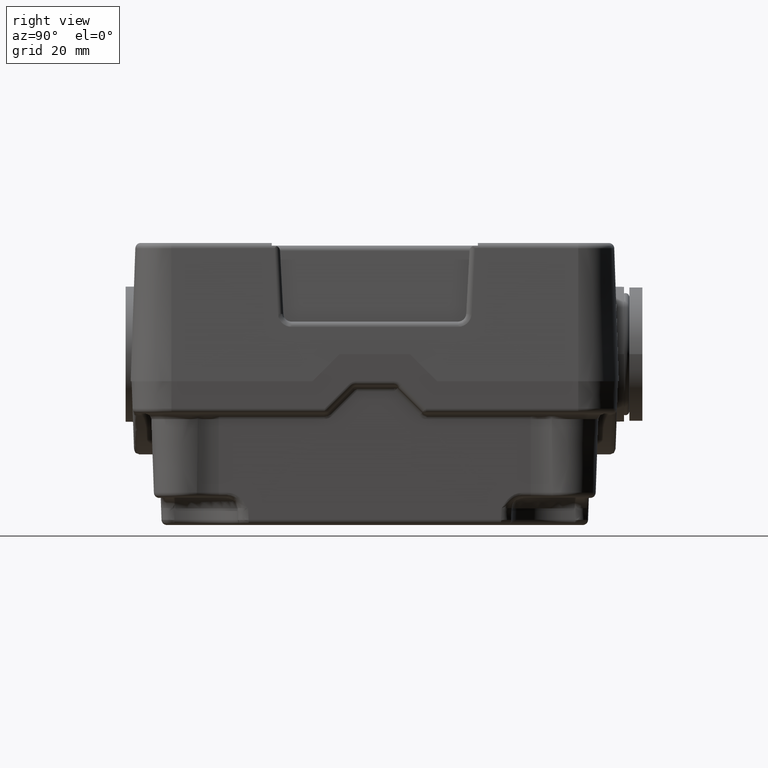
[diagram: clean part render]
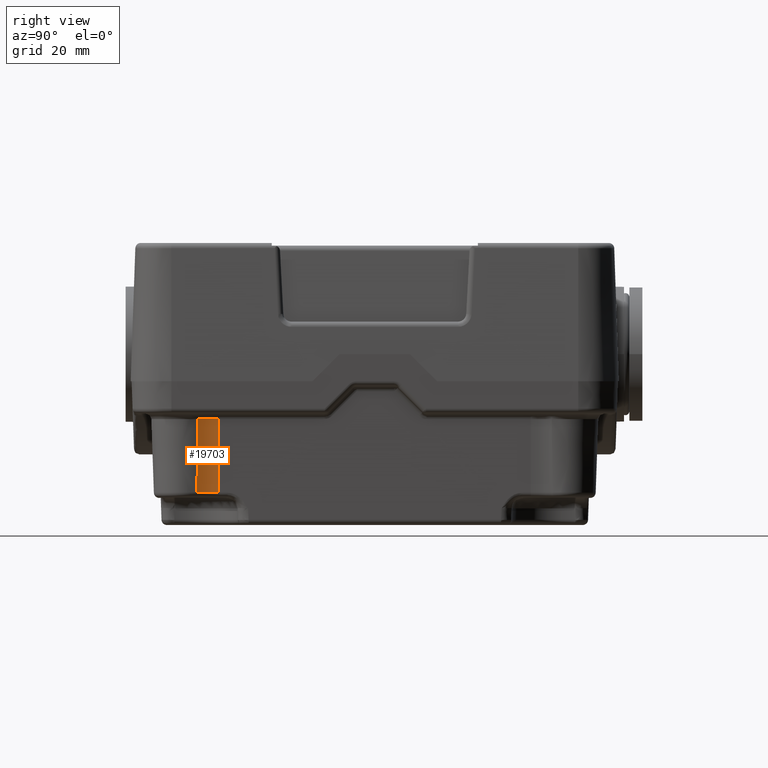
[diagram: same view with one face highlighted and labeled with its STEP entity id]
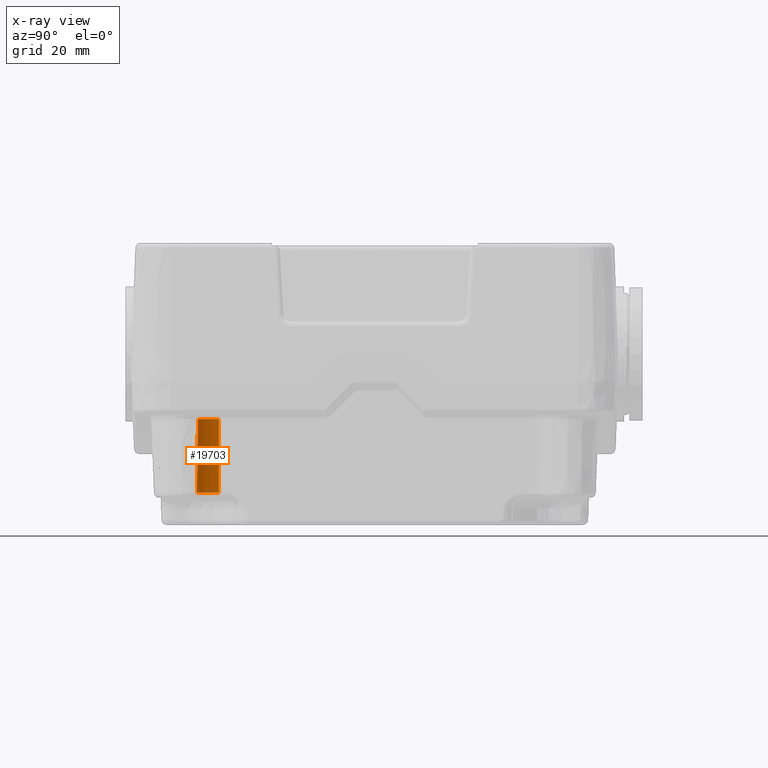
[diagram: x-ray of the same camera — body ghosted, the highlighted face saturated]
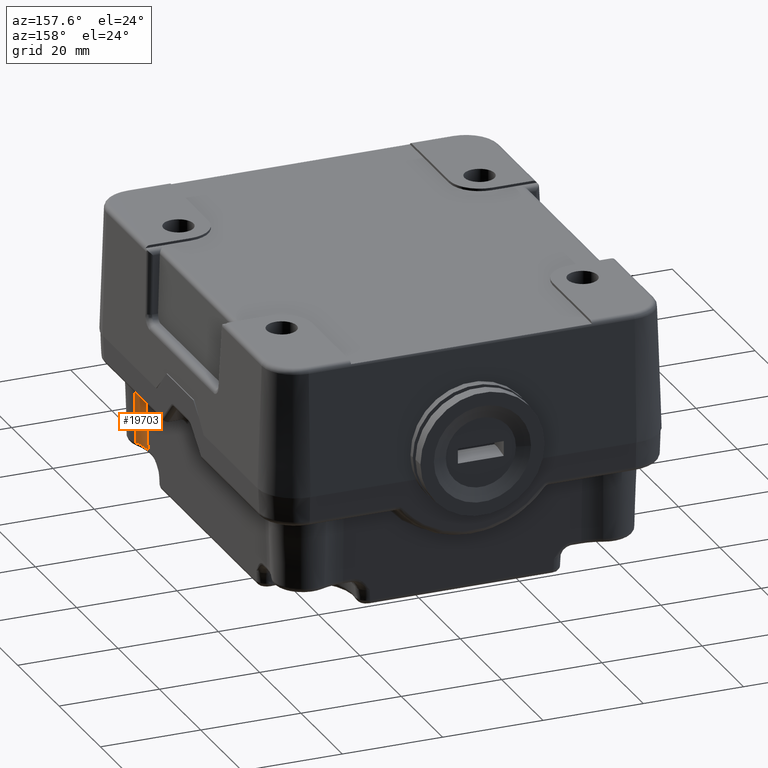
[diagram: same view with one face highlighted and labeled with its STEP entity id]
A machine part, right view. The second image highlights one B-rep face of the part: STEP entity #19703.
The next image is the same camera in x-ray: the body ghosted, the highlighted face saturated — about 0% of this face is hidden behind the body in this view.
A second angle (auxiliary view) of the same face is appended — the face is thin or edge-on in the first view.
In plain terms, the highlighted conical surface has half-angle 2 deg.
Its self-contained STEP definition (entity closure, byte-faithful):
#19253=CARTESIAN_POINT('',(63.590725885800097,0.193142371422513,25.534899496702504));
#19254=VERTEX_POINT('',#19253);
#19273=CARTESIAN_POINT('',(62.782617083048422,-3.846613920615132,25.534899496702504));
#19274=VERTEX_POINT('',#19273);
#19282=CARTESIAN_POINT('',(73.284093294141258,-3.846613920615141,25.534899496702504));
#19283=DIRECTION('',(0.0,0.0,-1.0));
#19284=DIRECTION('',(-0.980573320988741,0.196152905064168,0.0));
#19285=AXIS2_PLACEMENT_3D('',#19282,#19283,#19284);
#19286=CIRCLE('',#19285,10.501476211092820);
#19287=EDGE_CURVE('',#19274,#19254,#19286,.T.);
#19653=CARTESIAN_POINT('',(64.028128667663367,0.010852712344248,11.965100503297492));
#19654=VERTEX_POINT('',#19653);
#19655=CARTESIAN_POINT('',(64.028128667663367,0.010852712344248,11.965100503297492));
#19656=DIRECTION('',(-0.032213913273088,0.013425299315914,0.999390827019096));
#19657=VECTOR('',#19656,13.578070387017600);
#19658=LINE('',#19655,#19657);
#19659=EDGE_CURVE('',#19654,#19254,#19658,.T.);
#19679=CARTESIAN_POINT('',(73.284093294141258,-3.846613920615143,10.999999999999995));
#19680=DIRECTION('',(0.0,1.356939E-016,1.0));
#19681=DIRECTION('',(1.0,0.0,0.0));
#19682=AXIS2_PLACEMENT_3D('',#19679,#19680,#19681);
#19683=CONICAL_SURFACE('',#19682,9.993906336182759,2.0);
#19684=ORIENTED_EDGE('',*,*,#19287,.F.);
#19685=CARTESIAN_POINT('',(63.256484905746468,-3.846613920615134,11.965100503297492));
#19686=VERTEX_POINT('',#19685);
#19687=CARTESIAN_POINT('',(63.256484905746468,-3.846613920615134,11.965100503297492));
#19688=DIRECTION('',(-0.034899496702501,1.635318E-016,0.999390827019096));
#19689=VECTOR('',#19688,13.578070387017600);
#19690=LINE('',#19687,#19689);
#19691=EDGE_CURVE('',#19686,#19274,#19690,.T.);
#19692=ORIENTED_EDGE('',*,*,#19691,.F.);
#19693=CARTESIAN_POINT('',(73.284093294141258,-3.846613920615144,11.965100503297492));
#19694=DIRECTION('',(0.0,0.0,1.0));
#19695=DIRECTION('',(-0.980573320988741,0.196152905064168,0.0));
#19696=AXIS2_PLACEMENT_3D('',#19693,#19694,#19695);
#19697=CIRCLE('',#19696,10.027608388394777);
#19698=EDGE_CURVE('',#19654,#19686,#19697,.T.);
#19699=ORIENTED_EDGE('',*,*,#19698,.F.);
#19700=ORIENTED_EDGE('',*,*,#19659,.T.);
#19701=EDGE_LOOP('',(#19684,#19692,#19699,#19700));
#19702=FACE_OUTER_BOUND('',#19701,.T.);
#19703=ADVANCED_FACE('',(#19702),#19683,.F.);